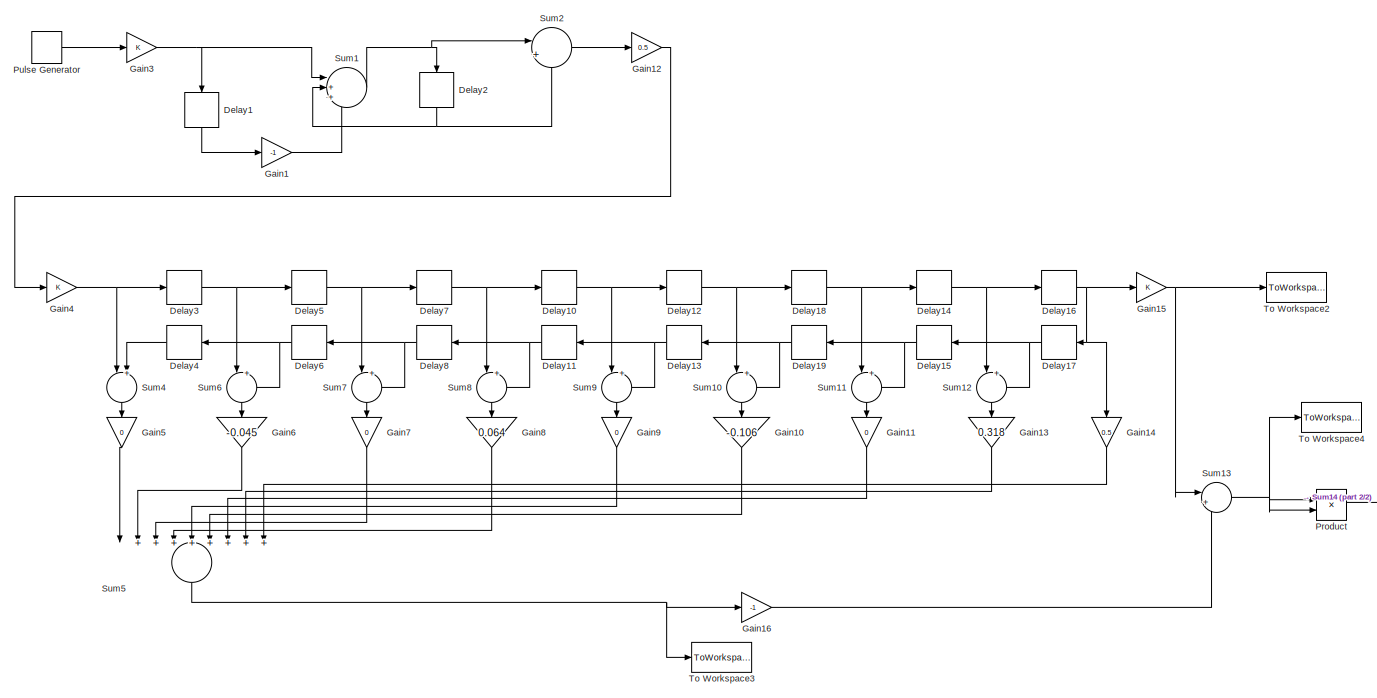
[diagram: root canvas - part 1/2, most of the canvas]
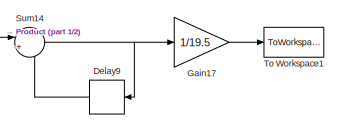
[diagram: root canvas - part 2/2, bottom right region]
MODEL slx_5893a4e17e32
KIND model
CONFIG AbsTol = auto
CONFIG EnableMultiTasking = on
CONFIG FixedStep = auto
CONFIG MaxStep = auto
CONFIG MinStep = auto
CONFIG RelTol = 1e-3
CONFIG SampleTimeConstraint = Unconstrained
CONFIG Solver = ode45
CONFIG SolverName = ode45
CONFIG StartTime = 0.0
CONFIG StopTime = 40
BLOCK [Delay] Delay1
  DelayLength = 20
  InitialCondition = 0
  InputPortMap = u0
  InputProcessing = Inherited
  Ports = [1, 1]
BLOCK [Delay] Delay10
  DelayLength = 1
  InitialCondition = 0
  InputPortMap = u0
  InputProcessing = Inherited
  Ports = [1, 1]
BLOCK [Delay] Delay11
  DelayLength = 1
  InitialCondition = 0
  InputPortMap = u0
  InputProcessing = Inherited
  Ports = [1, 1]
BLOCK [Delay] Delay12
  DelayLength = 1
  InitialCondition = 0
  InputPortMap = u0
  InputProcessing = Inherited
  Ports = [1, 1]
BLOCK [Delay] Delay13
  DelayLength = 1
  InitialCondition = 0
  InputPortMap = u0
  InputProcessing = Inherited
  Ports = [1, 1]
BLOCK [Delay] Delay14
  DelayLength = 1
  InitialCondition = 0
  InputPortMap = u0
  InputProcessing = Inherited
  Ports = [1, 1]
BLOCK [Delay] Delay15
  DelayLength = 1
  InitialCondition = 0
  InputPortMap = u0
  InputProcessing = Inherited
  Ports = [1, 1]
BLOCK [Delay] Delay16
  DelayLength = 1
  InitialCondition = 0
  InputPortMap = u0
  InputProcessing = Inherited
  Ports = [1, 1]
BLOCK [Delay] Delay17
  DelayLength = 1
  InitialCondition = 0
  InputPortMap = u0
  InputProcessing = Inherited
  Ports = [1, 1]
BLOCK [Delay] Delay18
  DelayLength = 1
  InitialCondition = 0
  InputPortMap = u0
  InputProcessing = Inherited
  Ports = [1, 1]
BLOCK [Delay] Delay19
  DelayLength = 1
  InitialCondition = 0
  InputPortMap = u0
  InputProcessing = Inherited
  Ports = [1, 1]
BLOCK [Delay] Delay2
  DelayLength = 1
  InitialCondition = 0
  InputPortMap = u0
  InputProcessing = Inherited
  Ports = [1, 1]
BLOCK [Delay] Delay3
  DelayLength = 1
  InitialCondition = 0
  InputPortMap = u0
  InputProcessing = Inherited
  Ports = [1, 1]
BLOCK [Delay] Delay4
  DelayLength = 1
  InitialCondition = 0
  InputPortMap = u0
  InputProcessing = Inherited
  Ports = [1, 1]
BLOCK [Delay] Delay5
  DelayLength = 1
  InitialCondition = 0
  InputPortMap = u0
  InputProcessing = Inherited
  Ports = [1, 1]
BLOCK [Delay] Delay6
  DelayLength = 1
  InitialCondition = 0
  InputPortMap = u0
  InputProcessing = Inherited
  Ports = [1, 1]
BLOCK [Delay] Delay7
  DelayLength = 1
  InitialCondition = 0
  InputPortMap = u0
  InputProcessing = Inherited
  Ports = [1, 1]
BLOCK [Delay] Delay8
  DelayLength = 1
  InitialCondition = 0
  InputPortMap = u0
  InputProcessing = Inherited
  Ports = [1, 1]
BLOCK [Delay] Delay9
  DelayLength = 1
  InitialCondition = 0
  InputPortMap = u0
  InputProcessing = Inherited
  Ports = [1, 1]
BLOCK [Gain] Gain1
  Gain = -1
  OutDataTypeStr = Inherit: Inherit via internal rule
  ParamDataTypeStr = Inherit: Inherit via internal rule
  SaturateOnIntegerOverflow = off
BLOCK [Gain] Gain10
  Gain = -0.106
  OutDataTypeStr = Inherit: Inherit via internal rule
  ParamDataTypeStr = Inherit: Inherit via internal rule
  SaturateOnIntegerOverflow = off
BLOCK [Gain] Gain11
  Gain = 0
  OutDataTypeStr = Inherit: Inherit via internal rule
  ParamDataTypeStr = Inherit: Inherit via internal rule
  SaturateOnIntegerOverflow = off
BLOCK [Gain] Gain12
  Gain = 0.5
  OutDataTypeStr = Inherit: Inherit via internal rule
  ParamDataTypeStr = Inherit: Inherit via internal rule
  SaturateOnIntegerOverflow = off
BLOCK [Gain] Gain13
  Gain = 0.318
  OutDataTypeStr = Inherit: Inherit via internal rule
  ParamDataTypeStr = Inherit: Inherit via internal rule
  SaturateOnIntegerOverflow = off
BLOCK [Gain] Gain14
  Gain = 0.5
  OutDataTypeStr = Inherit: Inherit via internal rule
  ParamDataTypeStr = Inherit: Inherit via internal rule
  SaturateOnIntegerOverflow = off
BLOCK [Gain] Gain15
  OutDataTypeStr = Inherit: Inherit via internal rule
  ParamDataTypeStr = Inherit: Inherit via internal rule
  SaturateOnIntegerOverflow = off
BLOCK [Gain] Gain16
  Gain = -1
  OutDataTypeStr = Inherit: Inherit via internal rule
  ParamDataTypeStr = Inherit: Inherit via internal rule
  SaturateOnIntegerOverflow = off
BLOCK [Gain] Gain17
  Gain = 1/19.5
  OutDataTypeStr = Inherit: Inherit via internal rule
  ParamDataTypeStr = Inherit: Inherit via internal rule
  SaturateOnIntegerOverflow = off
BLOCK [Gain] Gain3
  OutDataTypeStr = Inherit: Inherit via internal rule
  ParamDataTypeStr = Inherit: Inherit via internal rule
  SaturateOnIntegerOverflow = off
BLOCK [Gain] Gain4
  OutDataTypeStr = Inherit: Inherit via internal rule
  ParamDataTypeStr = Inherit: Inherit via internal rule
  SaturateOnIntegerOverflow = off
BLOCK [Gain] Gain5
  Gain = 0
  OutDataTypeStr = Inherit: Inherit via internal rule
  ParamDataTypeStr = Inherit: Inherit via internal rule
  SaturateOnIntegerOverflow = off
BLOCK [Gain] Gain6
  Gain = -0.045
  OutDataTypeStr = Inherit: Inherit via internal rule
  ParamDataTypeStr = Inherit: Inherit via internal rule
  SaturateOnIntegerOverflow = off
BLOCK [Gain] Gain7
  Gain = 0
  OutDataTypeStr = Inherit: Inherit via internal rule
  ParamDataTypeStr = Inherit: Inherit via internal rule
  SaturateOnIntegerOverflow = off
BLOCK [Gain] Gain8
  Gain = 0.064
  OutDataTypeStr = Inherit: Inherit via internal rule
  ParamDataTypeStr = Inherit: Inherit via internal rule
  SaturateOnIntegerOverflow = off
BLOCK [Gain] Gain9
  Gain = 0
  OutDataTypeStr = Inherit: Inherit via internal rule
  ParamDataTypeStr = Inherit: Inherit via internal rule
  SaturateOnIntegerOverflow = off
BLOCK [Product] Product
  InputSameDT = off
  OutDataTypeStr = Inherit: Inherit via internal rule
  Ports = [2, 1]
  RndMeth = Floor
  SaturateOnIntegerOverflow = off
BLOCK [DiscretePulseGenerator] Pulse Generator
  Period = 10000
  Ports = [0, 1]
BLOCK [Sum] Sum1
  IconShape = round
  InputSameDT = off
  Inputs = |+++
  OutDataTypeStr = Inherit: Inherit via internal rule
  Ports = [3, 1]
  SaturateOnIntegerOverflow = off
BLOCK [Sum] Sum10
  IconShape = round
  InputSameDT = off
  Inputs = |++
  OutDataTypeStr = Inherit: Inherit via internal rule
  Ports = [2, 1]
  SaturateOnIntegerOverflow = off
BLOCK [Sum] Sum11
  IconShape = round
  InputSameDT = off
  Inputs = |++
  OutDataTypeStr = Inherit: Inherit via internal rule
  Ports = [2, 1]
  SaturateOnIntegerOverflow = off
BLOCK [Sum] Sum12
  IconShape = round
  InputSameDT = off
  Inputs = |++
  OutDataTypeStr = Inherit: Inherit via internal rule
  Ports = [2, 1]
  SaturateOnIntegerOverflow = off
BLOCK [Sum] Sum13
  IconShape = round
  InputSameDT = off
  Inputs = |++
  OutDataTypeStr = Inherit: Inherit via internal rule
  Ports = [2, 1]
  SaturateOnIntegerOverflow = off
BLOCK [Sum] Sum14
  IconShape = round
  InputSameDT = off
  Inputs = |++
  OutDataTypeStr = Inherit: Inherit via internal rule
  Ports = [2, 1]
  SaturateOnIntegerOverflow = off
BLOCK [Sum] Sum2
  IconShape = round
  InputSameDT = off
  Inputs = |++
  OutDataTypeStr = Inherit: Inherit via internal rule
  Ports = [2, 1]
  SaturateOnIntegerOverflow = off
BLOCK [Sum] Sum4
  IconShape = round
  InputSameDT = off
  Inputs = |++
  OutDataTypeStr = Inherit: Inherit via internal rule
  Ports = [2, 1]
  SaturateOnIntegerOverflow = off
BLOCK [Sum] Sum5
  InputSameDT = off
  Inputs = |+++++++++
  OutDataTypeStr = Inherit: Inherit via internal rule
  Ports = [9, 1]
  SaturateOnIntegerOverflow = off
BLOCK [Sum] Sum6
  IconShape = round
  InputSameDT = off
  Inputs = |++
  OutDataTypeStr = Inherit: Inherit via internal rule
  Ports = [2, 1]
  SaturateOnIntegerOverflow = off
BLOCK [Sum] Sum7
  IconShape = round
  InputSameDT = off
  Inputs = |++
  OutDataTypeStr = Inherit: Inherit via internal rule
  Ports = [2, 1]
  SaturateOnIntegerOverflow = off
BLOCK [Sum] Sum8
  IconShape = round
  InputSameDT = off
  Inputs = |++
  OutDataTypeStr = Inherit: Inherit via internal rule
  Ports = [2, 1]
  SaturateOnIntegerOverflow = off
BLOCK [Sum] Sum9
  IconShape = round
  InputSameDT = off
  Inputs = |++
  OutDataTypeStr = Inherit: Inherit via internal rule
  Ports = [2, 1]
  SaturateOnIntegerOverflow = off
BLOCK [ToWorkspace] To Workspace1
  FixptAsFi = on
  MaxDataPoints = inf
  Ports = [1]
  SampleTime = -1
  Save2DSignal = 3-D array (concatenate along third dimension)
  VariableName = out_7
BLOCK [ToWorkspace] To Workspace2
  FixptAsFi = on
  MaxDataPoints = inf
  Ports = [1]
  SampleTime = -1
  Save2DSignal = 3-D array (concatenate along third dimension)
  VariableName = out_2
BLOCK [ToWorkspace] To Workspace3
  FixptAsFi = on
  MaxDataPoints = inf
  Ports = [1]
  SampleTime = -1
  Save2DSignal = 3-D array (concatenate along third dimension)
  VariableName = out_3
BLOCK [ToWorkspace] To Workspace4
  FixptAsFi = on
  MaxDataPoints = inf
  Ports = [1]
  SampleTime = -1
  Save2DSignal = 3-D array (concatenate along third dimension)
  VariableName = out_4
NET Delay10:1 -> Delay12:1, Sum9:1
NET Delay11:1 -> Delay8:1, Sum8:2
NET Delay12:1 -> Delay18:1, Sum10:1
NET Delay13:1 -> Delay11:1, Sum9:2
NET Delay14:1 -> Delay16:1, Sum12:1
NET Delay15:1 -> Delay19:1, Sum11:2
NET Delay16:1 -> Delay17:1, Gain14:1, Gain15:1
NET Delay17:1 -> Delay15:1, Sum12:2
NET Delay18:1 -> Delay14:1, Sum11:1
NET Delay19:1 -> Delay13:1, Sum10:2
LINE Delay1:1 -> Gain1:1
NET Delay2:1 -> Sum1:2, Sum2:2
NET Delay3:1 -> Delay5:1, Sum6:1
LINE Delay4:1 -> Sum4:2
NET Delay5:1 -> Delay7:1, Sum7:1
NET Delay6:1 -> Delay4:1, Sum6:2
NET Delay7:1 -> Delay10:1, Sum8:1
NET Delay8:1 -> Delay6:1, Sum7:2
LINE Delay9:1 -> Sum14:2
LINE Gain10:1 -> Sum5:6
LINE Gain11:1 -> Sum5:7
LINE Gain12:1 -> Gain4:1
LINE Gain13:1 -> Sum5:8
LINE Gain14:1 -> Sum5:9
NET Gain15:1 -> Sum13:1, To Workspace2:1
LINE Gain16:1 -> Sum13:2
LINE Gain17:1 -> To Workspace1:1
LINE Gain1:1 -> Sum1:3
NET Gain3:1 -> Delay1:1, Sum1:1
NET Gain4:1 -> Delay3:1, Sum4:1
LINE Gain5:1 -> Sum5:1
LINE Gain6:1 -> Sum5:2
LINE Gain7:1 -> Sum5:3
LINE Gain8:1 -> Sum5:4
LINE Gain9:1 -> Sum5:5
LINE Product:1 -> Sum14:1
LINE Pulse Generator:1 -> Gain3:1
LINE Sum10:1 -> Gain10:1
LINE Sum11:1 -> Gain11:1
LINE Sum12:1 -> Gain13:1
NET Sum13:1 -> Product:1, Product:2, To Workspace4:1
NET Sum14:1 -> Delay9:1, Gain17:1
NET Sum1:1 -> Delay2:1, Sum2:1
LINE Sum2:1 -> Gain12:1
LINE Sum4:1 -> Gain5:1
NET Sum5:1 -> Gain16:1, To Workspace3:1
LINE Sum6:1 -> Gain6:1
LINE Sum7:1 -> Gain7:1
LINE Sum8:1 -> Gain8:1
LINE Sum9:1 -> Gain9:1
note: NET lines group one-source signal fan-out (src -> all destinations, sorted); 1:1 wires keep LINE
